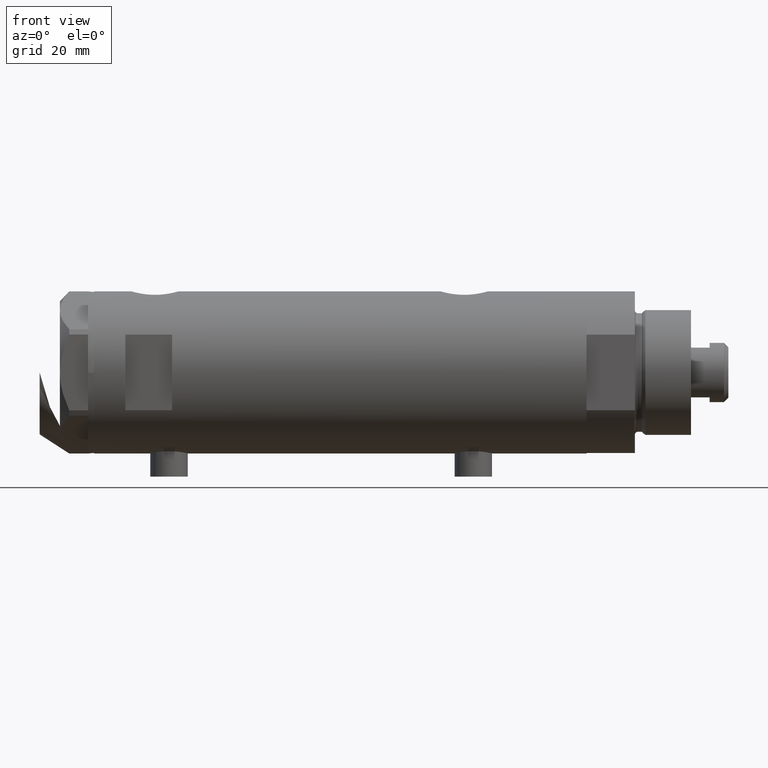
[diagram: clean part render]
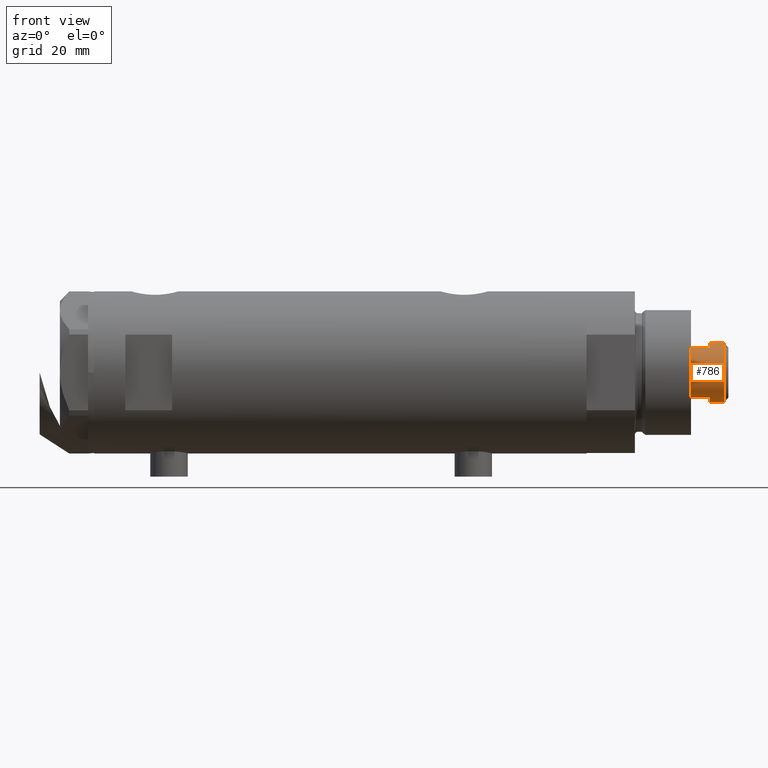
[diagram: same view with one face highlighted and labeled with its STEP entity id]
A machine part, front view. The second image highlights one B-rep face of the part: STEP entity #786.
In plain terms, the highlighted cylindrical surface (edge-blend (fillet) strip) has radius 9.5 mm, axis along (-1, -0, 0).
Its self-contained STEP definition (entity closure, byte-faithful):
#114 = DIRECTION ( 'NONE',  ( 1.000000000000000000, 0.000000000000000000, 0.000000000000000000 ) ) ;
#157 = DIRECTION ( 'NONE',  ( 0.000000000000000000, 0.000000000000000000, 1.000000000000000000 ) ) ;
#393 = LINE ( 'NONE', #4540, #1290 ) ;
#427 = DIRECTION ( 'NONE',  ( -0.000000000000000000, -0.000000000000000000, -1.000000000000000000 ) ) ;
#502 = VERTEX_POINT ( 'NONE', #1895 ) ;
#529 = DIRECTION ( 'NONE',  ( -0.000000000000000000, -0.000000000000000000, -1.000000000000000000 ) ) ;
#670 = ORIENTED_EDGE ( 'NONE', *, *, #4809, .T. ) ;
#786 = ADVANCED_FACE ( 'NONE', ( #4452 ), #1018, .T. ) ;
#792 = CARTESIAN_POINT ( 'NONE',  ( -9.500000000000001776, 0.000000000000000000, 178.2000000000000455 ) ) ;
#818 = VERTEX_POINT ( 'NONE', #4371 ) ;
#912 = VERTEX_POINT ( 'NONE', #792 ) ;
#1018 = CYLINDRICAL_SURFACE ( 'NONE', #4409, 9.500000000000001776 ) ;
#1069 = DIRECTION ( 'NONE',  ( -1.000000000000000000, 0.000000000000000000, 0.000000000000000000 ) ) ;
#1074 = CIRCLE ( 'NONE', #1698, 9.500000000000000000 ) ;
#1158 = CARTESIAN_POINT ( 'NONE',  ( -9.500000000000000000, 0.000000000000000000, 173.5999999999999943 ) ) ;
#1188 = CARTESIAN_POINT ( 'NONE',  ( -7.982950582334825462, -5.150000000000003020, 173.5999999999999943 ) ) ;
#1211 = AXIS2_PLACEMENT_3D ( 'NONE', #3497, #157, #114 ) ;
#1284 = AXIS2_PLACEMENT_3D ( 'NONE', #3570, #4675, #3929 ) ;
#1290 = VECTOR ( 'NONE', #427, 1000.000000000000000 ) ;
#1316 = DIRECTION ( 'NONE',  ( 1.000000000000000000, 0.000000000000000000, 0.000000000000000000 ) ) ;
#1396 = CARTESIAN_POINT ( 'NONE',  ( 0.000000000000000000, 0.000000000000000000, 173.5999999999999943 ) ) ;
#1425 = ORIENTED_EDGE ( 'NONE', *, *, #4801, .T. ) ;
#1681 = CARTESIAN_POINT ( 'NONE',  ( 0.000000000000000000, 0.000000000000000000, 173.5999999999999943 ) ) ;
#1698 = AXIS2_PLACEMENT_3D ( 'NONE', #1681, #4689, #1316 ) ;
#1738 = ORIENTED_EDGE ( 'NONE', *, *, #3417, .T. ) ;
#1895 = CARTESIAN_POINT ( 'NONE',  ( -7.982950582334825462, -5.150000000000169109, 167.5999999999999943 ) ) ;
#1975 = ORIENTED_EDGE ( 'NONE', *, *, #3528, .T. ) ;
#2145 = AXIS2_PLACEMENT_3D ( 'NONE', #2413, #3541, #4320 ) ;
#2322 = CARTESIAN_POINT ( 'NONE',  ( 9.500000000000001776, 1.163414459189985682E-15, 173.5999999999999943 ) ) ;
#2408 = VERTEX_POINT ( 'NONE', #3742 ) ;
#2413 = CARTESIAN_POINT ( 'NONE',  ( 0.000000000000000000, 0.000000000000000000, 178.2000000000000455 ) ) ;
#2456 = VERTEX_POINT ( 'NONE', #1158 ) ;
#2479 = EDGE_CURVE ( 'NONE', #818, #3490, #4182, .T. ) ;
#2539 = EDGE_CURVE ( 'NONE', #818, #912, #4592, .T. ) ;
#2887 = EDGE_LOOP ( 'NONE', ( #3642, #3206, #670, #1425, #3851, #1738, #3246, #1975 ) ) ;
#2957 = CARTESIAN_POINT ( 'NONE',  ( 7.982950582334832568, -5.149999999999997691, 173.5999999999999943 ) ) ;
#2980 = VECTOR ( 'NONE', #3377, 1000.000000000000000 ) ;
#3098 = CARTESIAN_POINT ( 'NONE',  ( 9.500000000000000000, 1.163414459189985485E-15, 173.5999999999999943 ) ) ;
#3206 = ORIENTED_EDGE ( 'NONE', *, *, #2539, .T. ) ;
#3246 = ORIENTED_EDGE ( 'NONE', *, *, #4212, .F. ) ;
#3377 = DIRECTION ( 'NONE',  ( -0.000000000000000000, -0.000000000000000000, -1.000000000000000000 ) ) ;
#3417 = EDGE_CURVE ( 'NONE', #502, #2408, #3646, .T. ) ;
#3452 = DIRECTION ( 'NONE',  ( -0.000000000000000000, -0.000000000000000000, -1.000000000000000000 ) ) ;
#3490 = VERTEX_POINT ( 'NONE', #3098 ) ;
#3497 = CARTESIAN_POINT ( 'NONE',  ( 0.000000000000000000, 0.000000000000000000, 173.5999999999999943 ) ) ;
#3528 = EDGE_CURVE ( 'NONE', #4776, #3490, #3805, .T. ) ;
#3541 = DIRECTION ( 'NONE',  ( 0.000000000000000000, 0.000000000000000000, -1.000000000000000000 ) ) ;
#3570 = CARTESIAN_POINT ( 'NONE',  ( 0.000000000000000000, 0.000000000000000000, 167.5999999999999943 ) ) ;
#3592 = VECTOR ( 'NONE', #529, 1000.000000000000000 ) ;
#3642 = ORIENTED_EDGE ( 'NONE', *, *, #2479, .F. ) ;
#3646 = CIRCLE ( 'NONE', #1284, 9.500000000000001776 ) ;
#3733 = LINE ( 'NONE', #2957, #2980 ) ;
#3742 = CARTESIAN_POINT ( 'NONE',  ( 7.982950582334834344, -5.150000000000159339, 167.5999999999999943 ) ) ;
#3805 = CIRCLE ( 'NONE', #1211, 9.500000000000000000 ) ;
#3851 = ORIENTED_EDGE ( 'NONE', *, *, #3989, .T. ) ;
#3929 = DIRECTION ( 'NONE',  ( 1.000000000000000000, 0.000000000000000000, 0.000000000000000000 ) ) ;
#3989 = EDGE_CURVE ( 'NONE', #4044, #502, #393, .T. ) ;
#4044 = VERTEX_POINT ( 'NONE', #1188 ) ;
#4182 = LINE ( 'NONE', #2322, #4340 ) ;
#4212 = EDGE_CURVE ( 'NONE', #4776, #2408, #3733, .T. ) ;
#4270 = CARTESIAN_POINT ( 'NONE',  ( -9.500000000000001776, 0.000000000000000000, 173.5999999999999943 ) ) ;
#4320 = DIRECTION ( 'NONE',  ( 1.000000000000000000, 0.000000000000000000, 0.000000000000000000 ) ) ;
#4340 = VECTOR ( 'NONE', #3452, 1000.000000000000000 ) ;
#4371 = CARTESIAN_POINT ( 'NONE',  ( 9.500000000000001776, 1.163414459189985682E-15, 178.2000000000000455 ) ) ;
#4409 = AXIS2_PLACEMENT_3D ( 'NONE', #1396, #4743, #1069 ) ;
#4430 = CARTESIAN_POINT ( 'NONE',  ( 7.982950582334832568, -5.149999999999997691, 173.5999999999999943 ) ) ;
#4452 = FACE_OUTER_BOUND ( 'NONE', #2887, .T. ) ;
#4540 = CARTESIAN_POINT ( 'NONE',  ( -7.982950582334829015, -5.150000000000001243, 173.5999999999999943 ) ) ;
#4592 = CIRCLE ( 'NONE', #2145, 9.500000000000001776 ) ;
#4644 = LINE ( 'NONE', #4270, #3592 ) ;
#4675 = DIRECTION ( 'NONE',  ( 0.000000000000000000, 0.000000000000000000, 1.000000000000000000 ) ) ;
#4689 = DIRECTION ( 'NONE',  ( 0.000000000000000000, 0.000000000000000000, 1.000000000000000000 ) ) ;
#4743 = DIRECTION ( 'NONE',  ( -0.000000000000000000, -0.000000000000000000, -1.000000000000000000 ) ) ;
#4776 = VERTEX_POINT ( 'NONE', #4430 ) ;
#4801 = EDGE_CURVE ( 'NONE', #2456, #4044, #1074, .T. ) ;
#4809 = EDGE_CURVE ( 'NONE', #912, #2456, #4644, .T. ) ;